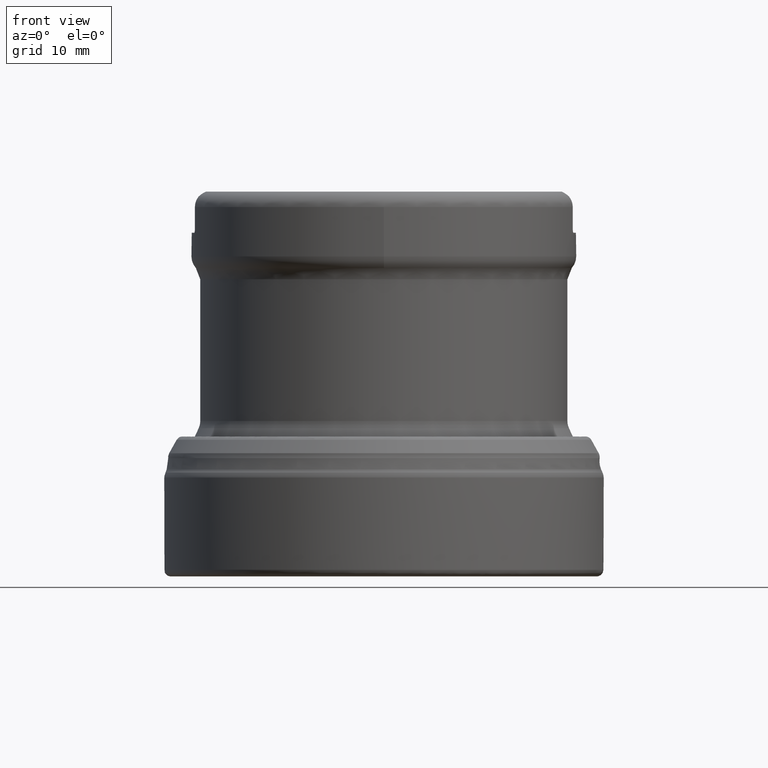
[diagram: clean part render]
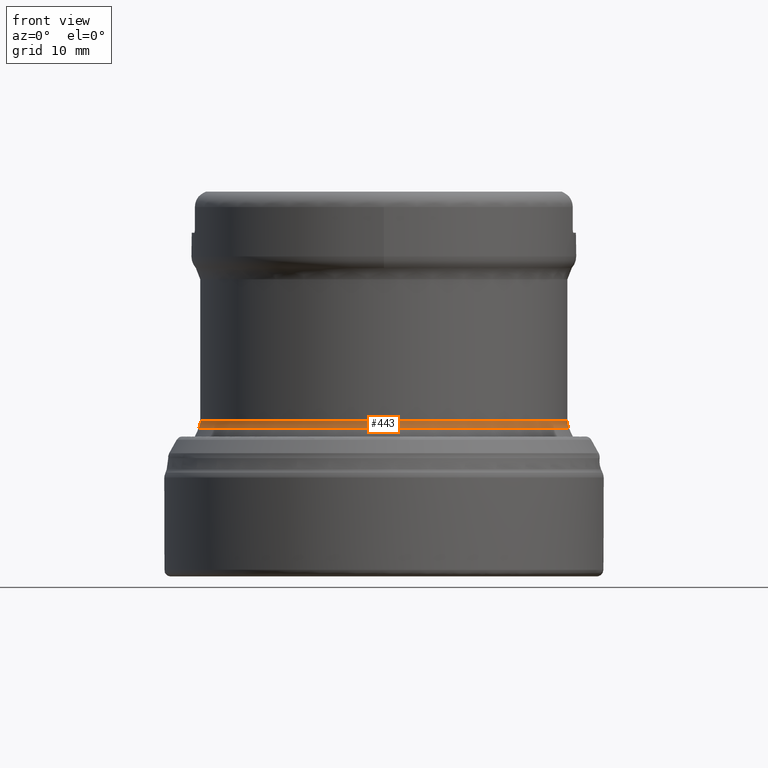
[diagram: same view with one face highlighted and labeled with its STEP entity id]
A machine part, front view. The second image highlights one B-rep face of the part: STEP entity #443.
In plain terms, the highlighted toroidal blend (fillet) surface has major radius 23.225 mm and minor (blend) radius 2 mm.
Its self-contained STEP definition (entity closure, byte-faithful):
#311=FACE_BOUND('',#609,.T.);
#312=FACE_BOUND('',#610,.T.);
#443=ADVANCED_FACE('',(#311,#312),#497,.F.);
#497=TOROIDAL_SURFACE('',#1552,23.225,2.);
#609=EDGE_LOOP('',(#908));
#610=EDGE_LOOP('',(#909));
#908=ORIENTED_EDGE('',*,*,#1193,.F.);
#909=ORIENTED_EDGE('',*,*,#1192,.F.);
#1063=VERTEX_POINT('',#2925);
#1064=VERTEX_POINT('',#2928);
#1192=EDGE_CURVE('',#1063,#1063,#1316,.T.);
#1193=EDGE_CURVE('',#1064,#1064,#1317,.T.);
#1316=CIRCLE('',#1491,21.4123844259267);
#1317=CIRCLE('',#1493,21.225);
#1491=AXIS2_PLACEMENT_3D('',#2924,#1693,#1694);
#1493=AXIS2_PLACEMENT_3D('',#2927,#1697,#1698);
#1552=AXIS2_PLACEMENT_3D('',#3234,#1831,#1832);
#1693=DIRECTION('',(0.,-1.17145536458252E-15,-1.));
#1694=DIRECTION('',(0.,1.,-1.13420944536513E-15));
#1697=DIRECTION('',(0.,1.17145536458252E-15,1.));
#1698=DIRECTION('',(0.,1.,-1.14422278745231E-15));
#1831=DIRECTION('',(0.,-1.17145536458252E-15,-1.));
#1832=DIRECTION('',(0.,1.,-1.23786016125203E-15));
#2924=CARTESIAN_POINT('',(0.,2.00504386386609E-14,17.1158366292567));
#2925=CARTESIAN_POINT('',(0.,21.4123844259267,17.1158366292567));
#2927=CARTESIAN_POINT('',(0.,2.10405954984342E-14,17.9610731527381));
#2928=CARTESIAN_POINT('',(0.,21.225,17.9610731527381));
#3234=CARTESIAN_POINT('',(0.,2.10405954984342E-14,17.9610731527381));